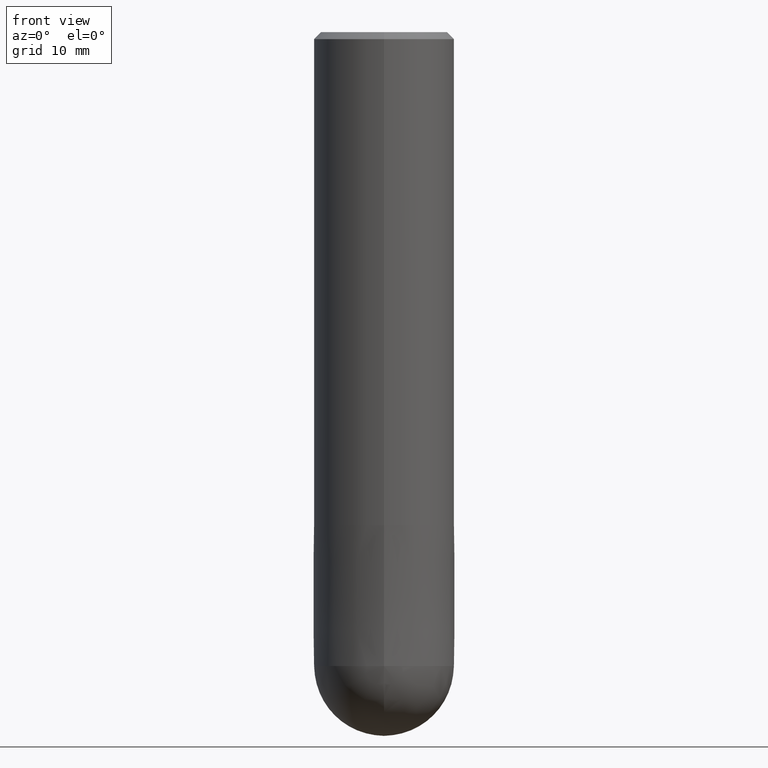
[diagram: clean part render]
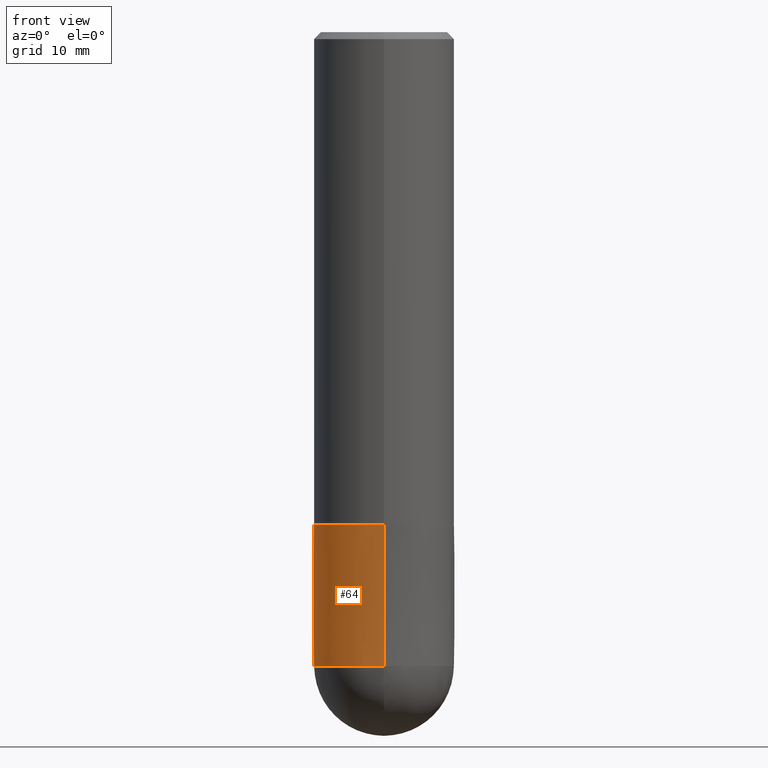
[diagram: same view with one face highlighted and labeled with its STEP entity id]
A machine part, front view. The second image highlights one B-rep face of the part: STEP entity #64.
In plain terms, the highlighted conical surface has half-angle 0 deg.
Its self-contained STEP definition (entity closure, byte-faithful):
#64=ADVANCED_FACE('',(#157),#158,.T.);
#70=EDGE_CURVE('',#126,#110,#166,.T.);
#78=VERTEX_POINT('',#174);
#106=EDGE_CURVE('',#116,#110,#206,.T.);
#110=VERTEX_POINT('',#210);
#114=EDGE_CURVE('',#78,#126,#214,.T.);
#116=VERTEX_POINT('',#216);
#126=VERTEX_POINT('',#227);
#130=EDGE_CURVE('',#116,#78,#231,.T.);
#157=FACE_OUTER_BOUND('',#250,.T.);
#158=CONICAL_SURFACE('',#251,5.99995,8.33333333319503E-006);
#166=LINE('',#260,#261);
#174=CARTESIAN_POINT('',(7.34751566229888E-016,-5.9999,-42.0));
#206=CIRCLE('',#308,6.0);
#210=CARTESIAN_POINT('',(0.0,6.0,-54.0));
#214=CIRCLE('',#320,5.9999);
#216=CARTESIAN_POINT('',(7.34763812293426E-016,-6.0,-54.0));
#227=CARTESIAN_POINT('',(0.0,5.9999,-42.0));
#231=LINE('',#344,#345);
#250=EDGE_LOOP('',(#365,#366,#367,#368));
#251=AXIS2_PLACEMENT_3D('',#369,#370,#371);
#260=CARTESIAN_POINT('',(-7.34757689261657E-016,5.99995,-48.0));
#261=VECTOR('',#380,1.0);
#308=AXIS2_PLACEMENT_3D('',#426,#427,#428);
#320=AXIS2_PLACEMENT_3D('',#433,#434,#435);
#344=CARTESIAN_POINT('',(7.34757689261657E-016,-5.99995,-48.0));
#345=VECTOR('',#450,1.0);
#365=ORIENTED_EDGE('',*,*,#70,.T.);
#366=ORIENTED_EDGE('',*,*,#106,.F.);
#367=ORIENTED_EDGE('',*,*,#130,.T.);
#368=ORIENTED_EDGE('',*,*,#114,.T.);
#369=CARTESIAN_POINT('',(0.0,0.0,-48.0));
#370=DIRECTION('',(0.0,-0.0,-1.0));
#371=DIRECTION('',(0.0,1.0,0.0));
#380=DIRECTION('',(-1.02050529482323E-021,8.33333333309857E-006,-0.999999999965278));
#426=CARTESIAN_POINT('',(0.0,0.0,-54.0));
#427=DIRECTION('',(0.0,0.0,-1.0));
#428=DIRECTION('',(0.0,1.0,0.0));
#433=CARTESIAN_POINT('',(0.0,0.0,-42.0));
#434=DIRECTION('',(0.0,0.0,-1.0));
#435=DIRECTION('',(0.0,1.0,0.0));
#450=DIRECTION('',(-1.02050529482323E-021,8.33333333309857E-006,0.999999999965278));